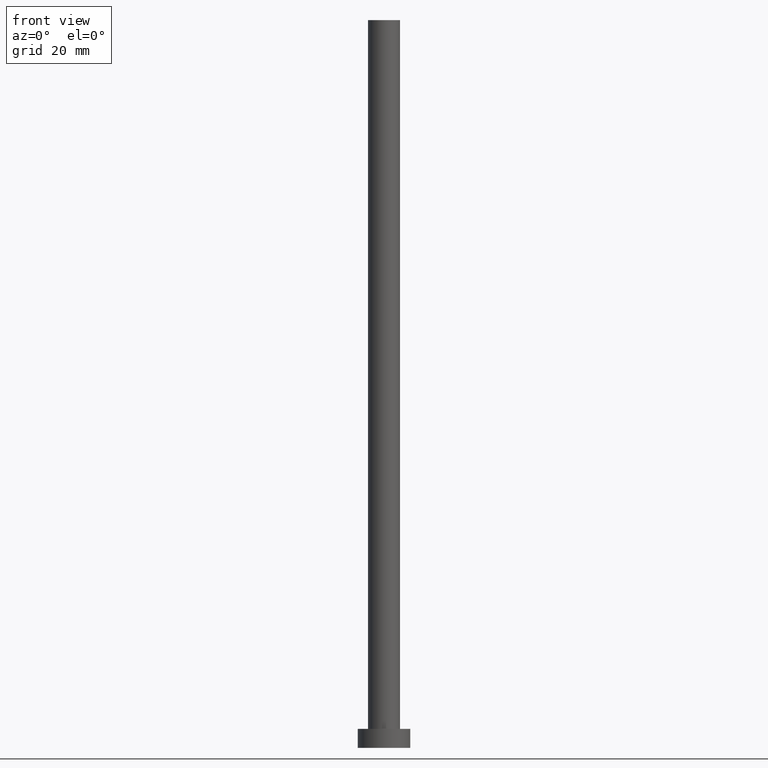
[diagram: clean part render]
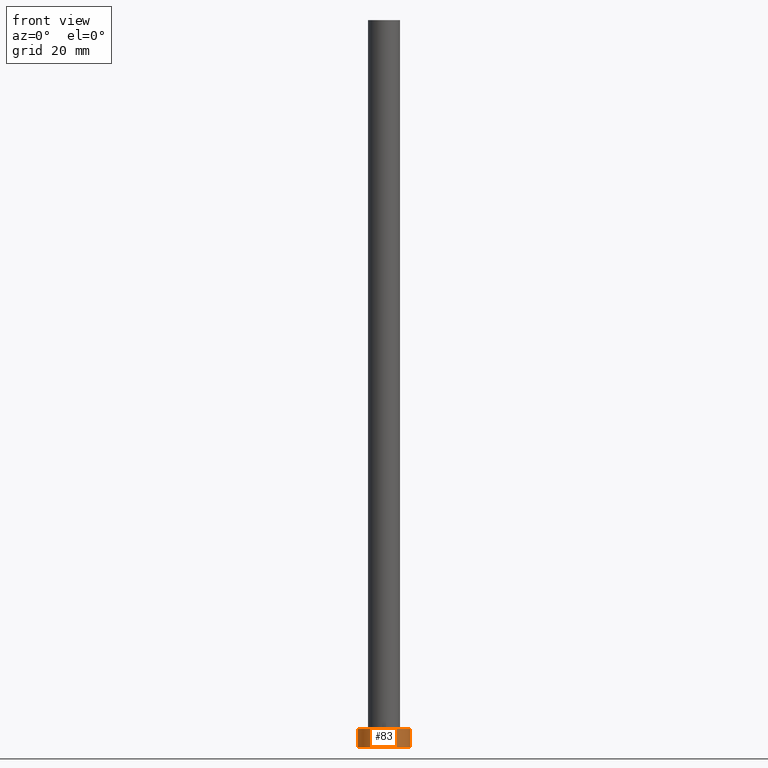
[diagram: same view with one face highlighted and labeled with its STEP entity id]
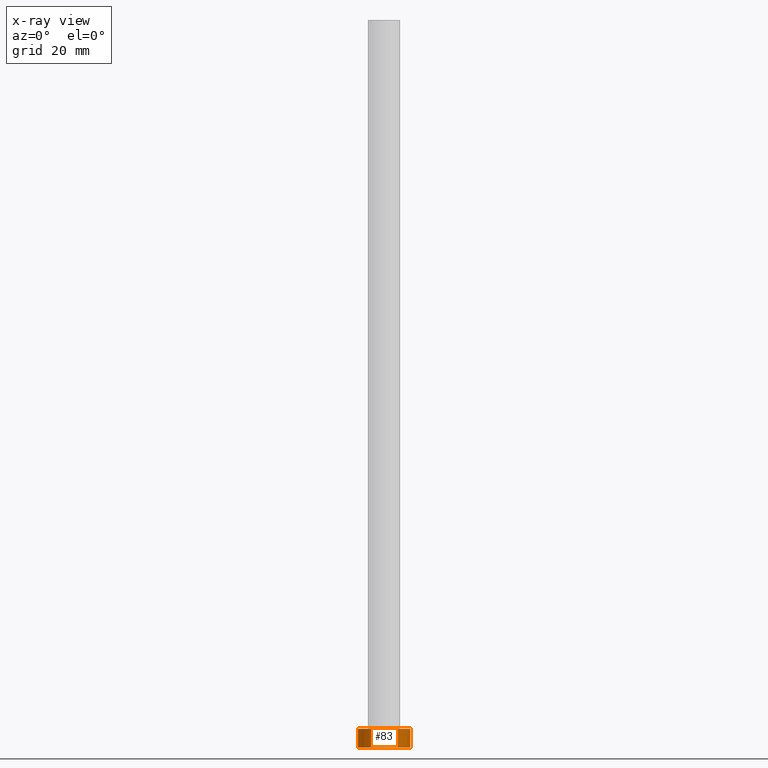
[diagram: x-ray of the same camera — body ghosted, the highlighted face saturated]
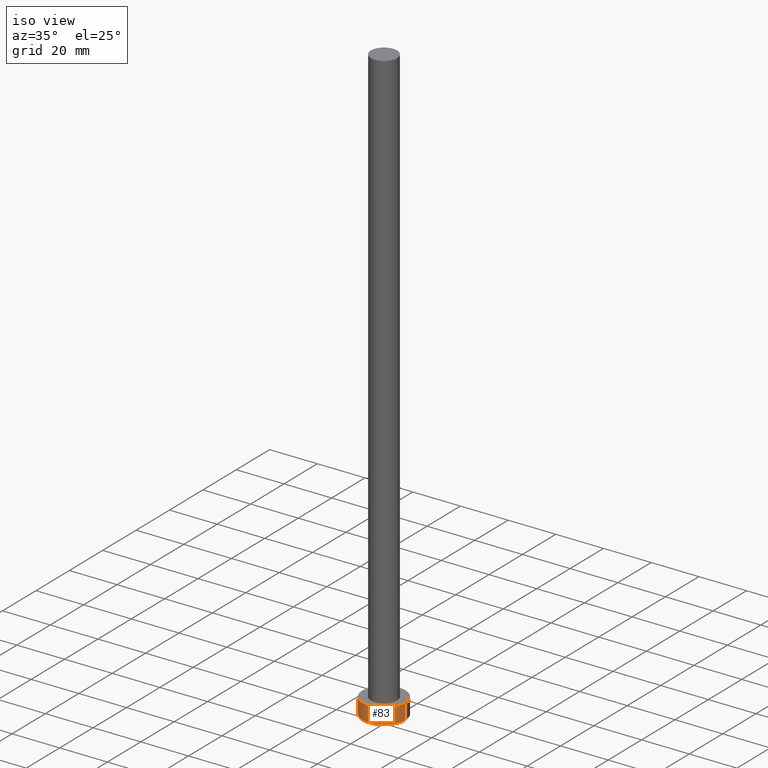
[diagram: same view with one face highlighted and labeled with its STEP entity id]
A machine part, front view. The second image highlights one B-rep face of the part: STEP entity #83.
The next image is the same camera in x-ray: the body ghosted, the highlighted face saturated — about 0% of this face is hidden behind the body in this view.
A second angle (iso view) of the same face is appended — the face is thin or edge-on in the first view.
In plain terms, the highlighted cylindrical surface (edge-blend (fillet) strip) has radius 9 mm, axis along (-0, -0, -1).
Its self-contained STEP definition (entity closure, byte-faithful):
#7 = CARTESIAN_POINT ( 'NONE',  ( -9.000000000000000000, 0.000000000000000000, 6.500000000000000000 ) ) ;
#11 = VECTOR ( 'NONE', #209, 1000.000000000000000 ) ;
#13 = VERTEX_POINT ( 'NONE', #87 ) ;
#25 = ORIENTED_EDGE ( 'NONE', *, *, #203, .T. ) ;
#31 = DIRECTION ( 'NONE',  ( 0.000000000000000000, 0.000000000000000000, 1.000000000000000000 ) ) ;
#39 = CIRCLE ( 'NONE', #187, 9.000000000000000000 ) ;
#43 = AXIS2_PLACEMENT_3D ( 'NONE', #70, #166, #228 ) ;
#45 = EDGE_CURVE ( 'NONE', #180, #13, #103, .T. ) ;
#51 = DIRECTION ( 'NONE',  ( 1.000000000000000000, 0.000000000000000000, 0.000000000000000000 ) ) ;
#67 = LINE ( 'NONE', #177, #218 ) ;
#70 = CARTESIAN_POINT ( 'NONE',  ( 0.000000000000000000, 0.000000000000000000, 6.500000000000000000 ) ) ;
#83 = ADVANCED_FACE ( 'NONE', ( #250 ), #145, .T. ) ;
#87 = CARTESIAN_POINT ( 'NONE',  ( 9.000000000000000000, 1.102182119232617517E-15, 0.000000000000000000 ) ) ;
#91 = EDGE_CURVE ( 'NONE', #161, #180, #109, .T. ) ;
#99 = ORIENTED_EDGE ( 'NONE', *, *, #131, .T. ) ;
#103 = LINE ( 'NONE', #169, #11 ) ;
#109 = CIRCLE ( 'NONE', #179, 9.000000000000000000 ) ;
#127 = DIRECTION ( 'NONE',  ( 1.000000000000000000, 0.000000000000000000, 0.000000000000000000 ) ) ;
#131 = EDGE_CURVE ( 'NONE', #161, #173, #67, .T. ) ;
#140 = ORIENTED_EDGE ( 'NONE', *, *, #91, .F. ) ;
#145 = CYLINDRICAL_SURFACE ( 'NONE', #43, 9.000000000000000000 ) ;
#160 = EDGE_LOOP ( 'NONE', ( #235, #140, #99, #25 ) ) ;
#161 = VERTEX_POINT ( 'NONE', #7 ) ;
#166 = DIRECTION ( 'NONE',  ( -0.000000000000000000, -0.000000000000000000, -1.000000000000000000 ) ) ;
#169 = CARTESIAN_POINT ( 'NONE',  ( 9.000000000000000000, 1.102182119232617517E-15, 6.500000000000000000 ) ) ;
#170 = DIRECTION ( 'NONE',  ( 0.000000000000000000, 0.000000000000000000, 1.000000000000000000 ) ) ;
#173 = VERTEX_POINT ( 'NONE', #200 ) ;
#177 = CARTESIAN_POINT ( 'NONE',  ( -9.000000000000000000, 0.000000000000000000, 6.500000000000000000 ) ) ;
#179 = AXIS2_PLACEMENT_3D ( 'NONE', #229, #31, #51 ) ;
#180 = VERTEX_POINT ( 'NONE', #182 ) ;
#182 = CARTESIAN_POINT ( 'NONE',  ( 9.000000000000000000, 1.102182119232617517E-15, 6.500000000000000000 ) ) ;
#185 = CARTESIAN_POINT ( 'NONE',  ( 0.000000000000000000, 0.000000000000000000, 0.000000000000000000 ) ) ;
#187 = AXIS2_PLACEMENT_3D ( 'NONE', #185, #170, #127 ) ;
#198 = DIRECTION ( 'NONE',  ( -0.000000000000000000, -0.000000000000000000, -1.000000000000000000 ) ) ;
#200 = CARTESIAN_POINT ( 'NONE',  ( -9.000000000000000000, 0.000000000000000000, 0.000000000000000000 ) ) ;
#203 = EDGE_CURVE ( 'NONE', #173, #13, #39, .T. ) ;
#209 = DIRECTION ( 'NONE',  ( -0.000000000000000000, -0.000000000000000000, -1.000000000000000000 ) ) ;
#218 = VECTOR ( 'NONE', #198, 1000.000000000000000 ) ;
#228 = DIRECTION ( 'NONE',  ( -1.000000000000000000, 0.000000000000000000, 0.000000000000000000 ) ) ;
#229 = CARTESIAN_POINT ( 'NONE',  ( 0.000000000000000000, 0.000000000000000000, 6.500000000000000000 ) ) ;
#235 = ORIENTED_EDGE ( 'NONE', *, *, #45, .F. ) ;
#250 = FACE_OUTER_BOUND ( 'NONE', #160, .T. ) ;